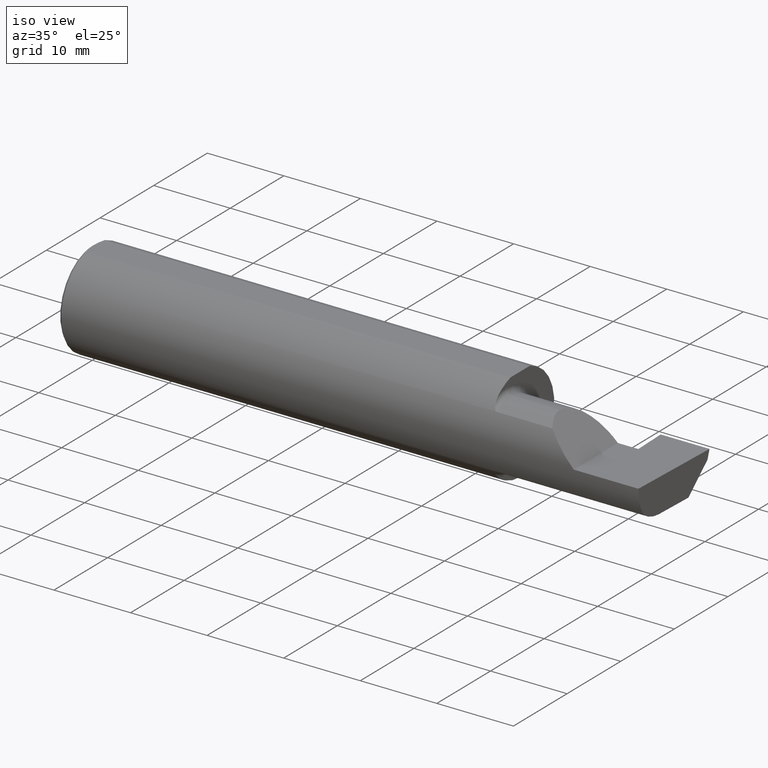
[diagram: clean part render]
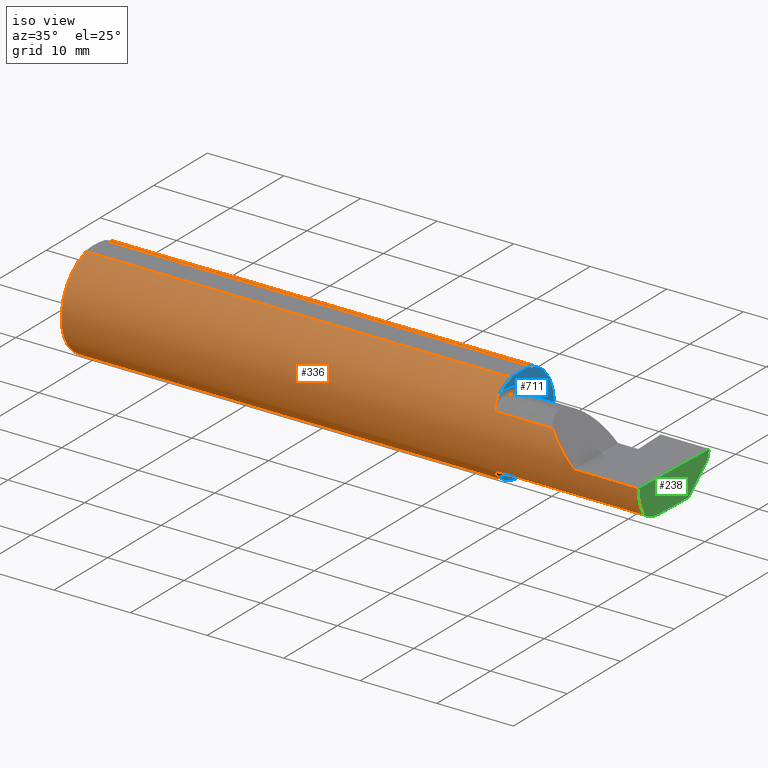
[diagram: same view with three faces highlighted in distinct colors, each labeled with its STEP entity id]
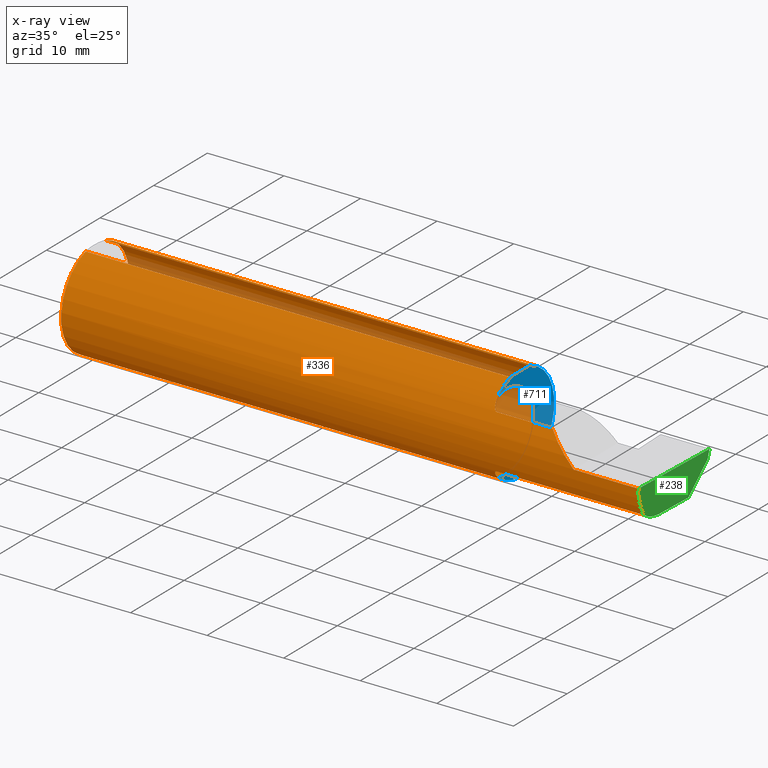
[diagram: x-ray of the same camera — body ghosted, the three highlighted faces saturated]
A machine part, iso view with three faces highlighted in distinct colors.
The next image is the same camera in x-ray (body ghosted, the three faces saturated) — at least one of them is partly hidden behind the body in this view.
Their STEP definitions:

[orange] entity #336 — the highlighted cylindrical surface (partial cylindrical patch) has radius 6.3462 mm, axis along (-1, -0, -0).
#2 = VERTEX_POINT ( 'NONE', #166 ) ;
#4 = CARTESIAN_POINT ( 'NONE',  ( 2.981341028891338230, -0.2497592792593359701, -0.04986346618388756008 ) ) ;
#6 = VECTOR ( 'NONE', #167, 39.37007874015748143 ) ;
#7 = CARTESIAN_POINT ( 'NONE',  ( 2.212616400345755796, -0.2024684335577104644, 0.1464246884265634763 ) ) ;
#17 = CIRCLE ( 'NONE', #601, 0.2498499999999999888 ) ;
#39 = CARTESIAN_POINT ( 'NONE',  ( 2.552984868485333347, -0.2355204011147992438, 0.09701513151466735485 ) ) ;
#40 = CARTESIAN_POINT ( 'NONE',  ( 0.01499999999999999944, 0.000000000000000000, 0.000000000000000000 ) ) ;
#42 = ORIENTED_EDGE ( 'NONE', *, *, #137, .T. ) ;
#54 = AXIS2_PLACEMENT_3D ( 'NONE', #151, #155, #653 ) ;
#57 = CARTESIAN_POINT ( 'NONE',  ( 2.199999999999998845, -0.1665641037263009827, 0.1863429692936361126 ) ) ;
#63 = LINE ( 'NONE', #69, #774 ) ;
#69 = CARTESIAN_POINT ( 'NONE',  ( 0.000000000000000000, 0.06997856814768359246, 0.2398500000000000076 ) ) ;
#96 = CARTESIAN_POINT ( 'NONE',  ( 2.650000000000000355, -0.2498499999999999610, 4.286263797015727350E-17 ) ) ;
#100 = VERTEX_POINT ( 'NONE', #747 ) ;
#103 = EDGE_CURVE ( 'NONE', #642, #140, #358, .T. ) ;
#104 = CARTESIAN_POINT ( 'NONE',  ( 2.221700027347579098, -0.2077785947292770941, -0.1387580622202821690 ) ) ;
#112 = ORIENTED_EDGE ( 'NONE', *, *, #453, .T. ) ;
#120 = VERTEX_POINT ( 'NONE', #260 ) ;
#122 = CIRCLE ( 'NONE', #759, 0.2498499999999999888 ) ;
#126 = ORIENTED_EDGE ( 'NONE', *, *, #595, .F. ) ;
#129 = CARTESIAN_POINT ( 'NONE',  ( 2.217647060162628136, -0.2062109266231183791, 0.1410799729252286971 ) ) ;
#133 = CARTESIAN_POINT ( 'NONE',  ( 2.199999999999999289, -0.1616050818046604332, 0.1905487340154980169 ) ) ;
#137 = EDGE_CURVE ( 'NONE', #682, #100, #235, .T. ) ;
#138 = DIRECTION ( 'NONE',  ( 0.000000000000000000, 0.000000000000000000, -1.000000000000000000 ) ) ;
#140 = VERTEX_POINT ( 'NONE', #446 ) ;
#141 = CARTESIAN_POINT ( 'NONE',  ( 4.499279347985559139E-32, -0.2498499999999999610, 3.673940397442053459E-16 ) ) ;
#149 = ORIENTED_EDGE ( 'NONE', *, *, #721, .F. ) ;
#151 = CARTESIAN_POINT ( 'NONE',  ( 0.01499999999999999944, 0.000000000000000000, 0.000000000000000000 ) ) ;
#155 = DIRECTION ( 'NONE',  ( -1.000000000000000000, -0.000000000000000000, -0.000000000000000000 ) ) ;
#160 = ORIENTED_EDGE ( 'NONE', *, *, #778, .F. ) ;
#166 = CARTESIAN_POINT ( 'NONE',  ( 2.225000000000000089, -0.2080850024789291375, -0.1382955322609665805 ) ) ;
#167 = DIRECTION ( 'NONE',  ( -1.000000000000000000, -0.000000000000000000, -0.000000000000000000 ) ) ;
#180 = VERTEX_POINT ( 'NONE', #568 ) ;
#185 = CARTESIAN_POINT ( 'NONE',  ( 2.980479240051444378, -0.2080850024789291652, -0.1382955322609665250 ) ) ;
#190 = CARTESIAN_POINT ( 'NONE',  ( 2.206159563508733434, -0.1933019864360851492, 0.1584298865564828795 ) ) ;
#196 = AXIS2_PLACEMENT_3D ( 'NONE', #197, #387, #138 ) ;
#197 = CARTESIAN_POINT ( 'NONE',  ( 2.200000000000000178, 0.000000000000000000, 0.000000000000000000 ) ) ;
#198 = VECTOR ( 'NONE', #566, 39.37007874015748143 ) ;
#205 = ORIENTED_EDGE ( 'NONE', *, *, #297, .T. ) ;
#211 = DIRECTION ( 'NONE',  ( -1.000000000000000000, -0.000000000000000000, -0.000000000000000000 ) ) ;
#219 = DIRECTION ( 'NONE',  ( 0.02616100201822768243, -0.0009135623211515307490, 0.9996573249755575929 ) ) ;
#222 = CARTESIAN_POINT ( 'NONE',  ( 0.01499999999999999944, 0.000000000000000000, -0.2498499999999999888 ) ) ;
#223 = VECTOR ( 'NONE', #219, 39.37007874015748854 ) ;
#225 = CARTESIAN_POINT ( 'NONE',  ( 2.199999999999999289, -0.1616050818046604332, 0.1905487340154980169 ) ) ;
#235 =( BOUNDED_CURVE ( )  B_SPLINE_CURVE ( 3, ( #683, #744, #4, #322 ),
 .UNSPECIFIED., .F., .F. ) 
 B_SPLINE_CURVE_WITH_KNOTS ( ( 4, 4 ),
 ( 0.05713034791898994463, 0.6418805321922593787 ),
 .UNSPECIFIED. ) 
 CURVE ( )  GEOMETRIC_REPRESENTATION_ITEM ( )  RATIONAL_B_SPLINE_CURVE ( ( 1.000000000000000000, 0.9717080070095530653, 0.9717080070095530653, 1.000000000000000000 ) ) 
 REPRESENTATION_ITEM ( '' )  );
#240 = CARTESIAN_POINT ( 'NONE',  ( 2.199999999999999289, -0.1616050818046604332, -0.1905487340154980169 ) ) ;
#241 = ORIENTED_EDGE ( 'NONE', *, *, #608, .F. ) ;
#246 = DIRECTION ( 'NONE',  ( 0.000000000000000000, 0.000000000000000000, -1.000000000000000000 ) ) ;
#259 = CARTESIAN_POINT ( 'NONE',  ( 2.225000000000000089, -0.2080850024789292485, 0.1382955322609664972 ) ) ;
#260 = CARTESIAN_POINT ( 'NONE',  ( 2.200000000000000178, -0.06997856814768374512, 0.2398500000000000076 ) ) ;
#261 = CARTESIAN_POINT ( 'NONE',  ( 2.199999999999999289, -0.1616050818046604332, -0.1905487340154980169 ) ) ;
#272 = EDGE_CURVE ( 'NONE', #416, #498, #648, .T. ) ;
#278 = AXIS2_PLACEMENT_3D ( 'NONE', #401, #211, #341 ) ;
#280 = CARTESIAN_POINT ( 'NONE',  ( 0.01499999999999998036, 0.06997856814768359246, 0.2398500000000000076 ) ) ;
#287 = CARTESIAN_POINT ( 'NONE',  ( 2.511704467739034552, -0.2080850024789292485, 0.1382955322609664139 ) ) ;
#289 = DIRECTION ( 'NONE',  ( 0.000000000000000000, 0.000000000000000000, 1.000000000000000000 ) ) ;
#297 = EDGE_CURVE ( 'NONE', #719, #416, #352, .T. ) ;
#301 = ORIENTED_EDGE ( 'NONE', *, *, #534, .F. ) ;
#310 = CARTESIAN_POINT ( 'NONE',  ( 2.487000000000000099, -0.2080850024789291652, 0.1382955322609665250 ) ) ;
#322 = CARTESIAN_POINT ( 'NONE',  ( 2.982632426700501771, -0.2498495826666993214, -0.0004566631977676544681 ) ) ;
#336 = ADVANCED_FACE ( 'NONE', ( #588 ), #389, .T. ) ;
#338 = ORIENTED_EDGE ( 'NONE', *, *, #745, .F. ) ;
#341 = DIRECTION ( 'NONE',  ( 0.000000000000000000, 0.000000000000000000, 1.000000000000000000 ) ) ;
#342 = CARTESIAN_POINT ( 'NONE',  ( 2.511704467739034552, -0.2080850024789292485, 0.1382955322609664139 ) ) ;
#350 = CARTESIAN_POINT ( 'NONE',  ( 2.223318040126429640, -0.2080850024789293318, -0.1382955322609663584 ) ) ;
#352 = LINE ( 'NONE', #141, #748 ) ;
#353 = DIRECTION ( 'NONE',  ( -1.000000000000000000, -0.000000000000000000, -0.000000000000000000 ) ) ;
#354 = CARTESIAN_POINT ( 'NONE',  ( 2.201385488563269988, -0.1808287530430326417, -0.1728790649396286516 ) ) ;
#358 = CIRCLE ( 'NONE', #196, 0.2498499999999999888 ) ;
#365 = CARTESIAN_POINT ( 'NONE',  ( 2.208176740666625726, -0.1972027065478074714, -0.1535263573771911416 ) ) ;
#371 = VERTEX_POINT ( 'NONE', #280 ) ;
#382 = CARTESIAN_POINT ( 'NONE',  ( 2.200000000000000178, 0.000000000000000000, 0.000000000000000000 ) ) ;
#384 = CARTESIAN_POINT ( 'NONE',  ( 2.202968662030528435, -0.1849684355203379260, 0.1680843977756265595 ) ) ;
#387 = DIRECTION ( 'NONE',  ( 1.000000000000000000, 0.000000000000000000, 0.000000000000000000 ) ) ;
#389 = CYLINDRICAL_SURFACE ( 'NONE', #278, 0.2498499999999999888 ) ;
#401 = CARTESIAN_POINT ( 'NONE',  ( 0.000000000000000000, 0.000000000000000000, 0.000000000000000000 ) ) ;
#411 = CARTESIAN_POINT ( 'NONE',  ( 2.218863362722769850, -0.2068301641248772027, -0.1401678546132356373 ) ) ;
#416 = VERTEX_POINT ( 'NONE', #420 ) ;
#420 = CARTESIAN_POINT ( 'NONE',  ( 2.650000000000000355, -0.2498499999999999610, 4.286263797015727350E-17 ) ) ;
#434 = CARTESIAN_POINT ( 'NONE',  ( 2.208182335268384477, -0.1972192205116133079, 0.1535061413537207042 ) ) ;
#446 = CARTESIAN_POINT ( 'NONE',  ( 2.200000000000000178, 0.06997856814768360634, 0.2398500000000000076 ) ) ;
#453 = EDGE_CURVE ( 'NONE', #100, #719, #781, .T. ) ;
#461 = CARTESIAN_POINT ( 'NONE',  ( 0.000000000000000000, -0.06997856814768359246, 0.2398500000000000076 ) ) ;
#462 = CARTESIAN_POINT ( 'NONE',  ( 2.487000000000000099, -0.2080850024789291652, -0.1382955322609665250 ) ) ;
#468 = CARTESIAN_POINT ( 'NONE',  ( 2.212579853086619419, -0.2024300470081737691, -0.1464774911482681907 ) ) ;
#469 = ORIENTED_EDGE ( 'NONE', *, *, #637, .F. ) ;
#488 = DIRECTION ( 'NONE',  ( 1.000000000000000000, 0.000000000000000000, 0.000000000000000000 ) ) ;
#493 = VERTEX_POINT ( 'NONE', #225 ) ;
#498 = VERTEX_POINT ( 'NONE', #287 ) ;
#500 = EDGE_CURVE ( 'NONE', #2, #642, #567, .T. ) ;
#513 = ORIENTED_EDGE ( 'NONE', *, *, #500, .F. ) ;
#518 = CARTESIAN_POINT ( 'NONE',  ( 2.600434159100403875, -0.2498499999999999055, 0.04956584089959691769 ) ) ;
#520 = VECTOR ( 'NONE', #636, 39.37007874015748143 ) ;
#532 = CARTESIAN_POINT ( 'NONE',  ( 2.225000000000000089, -0.2080850024789291375, -0.1382955322609665805 ) ) ;
#534 = EDGE_CURVE ( 'NONE', #682, #2, #767, .T. ) ;
#548 = LINE ( 'NONE', #310, #198 ) ;
#553 = CARTESIAN_POINT ( 'NONE',  ( 2.218876997637615034, -0.2068363917296602572, 0.1401586554522226136 ) ) ;
#562 = CARTESIAN_POINT ( 'NONE',  ( 2.221718393013768722, -0.2077830475237243957, 0.1387513848711933451 ) ) ;
#566 = DIRECTION ( 'NONE',  ( 1.000000000000000000, 0.000000000000000000, 0.000000000000000000 ) ) ;
#567 = B_SPLINE_CURVE_WITH_KNOTS ( 'NONE', 3,
 ( #532, #350, #104, #411, #726, #709, #468, #365, #654, #354, #776, #240 ),
 .UNSPECIFIED., .F., .F.,
 ( 4, 2, 2, 2, 2, 4 ),
 ( 1.964491429042083859E-07, 0.0001260981470478308324, 0.0002519998449527574851, 0.0005038032407626243971, 0.001007410032382356812, 0.002014623615621819689 ),
 .UNSPECIFIED. ) ;
#568 = CARTESIAN_POINT ( 'NONE',  ( 0.01499999999999999944, -0.06997856814768359246, 0.2398500000000000076 ) ) ;
#581 = CARTESIAN_POINT ( 'NONE',  ( 2.225000000000000089, -0.2080850024789292485, 0.1382955322609664972 ) ) ;
#587 = CARTESIAN_POINT ( 'NONE',  ( 2.982644377562602589, -0.2498499999999999610, 1.813681607540488003E-17 ) ) ;
#588 = FACE_OUTER_BOUND ( 'NONE', #773, .T. ) ;
#590 = DIRECTION ( 'NONE',  ( -1.000000000000000000, -0.000000000000000000, -0.000000000000000000 ) ) ;
#594 = LINE ( 'NONE', #461, #520 ) ;
#595 = EDGE_CURVE ( 'NONE', #725, #498, #548, .T. ) ;
#601 = AXIS2_PLACEMENT_3D ( 'NONE', #382, #488, #246 ) ;
#608 = EDGE_CURVE ( 'NONE', #120, #493, #17, .T. ) ;
#631 = ORIENTED_EDGE ( 'NONE', *, *, #272, .T. ) ;
#634 = CIRCLE ( 'NONE', #54, 0.2498499999999999888 ) ;
#636 = DIRECTION ( 'NONE',  ( 1.000000000000000000, 0.000000000000000000, 0.000000000000000000 ) ) ;
#637 = EDGE_CURVE ( 'NONE', #140, #371, #63, .T. ) ;
#642 = VERTEX_POINT ( 'NONE', #261 ) ;
#648 =( BOUNDED_CURVE ( )  B_SPLINE_CURVE ( 3, ( #96, #518, #39, #342 ),
 .UNSPECIFIED., .F., .F. ) 
 B_SPLINE_CURVE_WITH_KNOTS ( ( 4, 4 ),
 ( 4.712388980384689674, 5.298966915116346321 ),
 .UNSPECIFIED. ) 
 CURVE ( )  GEOMETRIC_REPRESENTATION_ITEM ( )  RATIONAL_B_SPLINE_CURVE ( ( 1.000000000000000000, 0.9715321379117538569, 0.9715321379117538569, 1.000000000000000000 ) ) 
 REPRESENTATION_ITEM ( '' )  );
#653 = DIRECTION ( 'NONE',  ( 0.000000000000000000, 0.000000000000000000, 1.000000000000000000 ) ) ;
#654 = CARTESIAN_POINT ( 'NONE',  ( 2.206147634408387681, -0.1932733126899462417, -0.1584637047788194641 ) ) ;
#658 = CARTESIAN_POINT ( 'NONE',  ( 2.977412177158956563, -0.2496672875357696664, -0.1999314649951114686 ) ) ;
#664 = EDGE_CURVE ( 'NONE', #493, #725, #791, .T. ) ;
#677 = CARTESIAN_POINT ( 'NONE',  ( 2.200367168219773628, -0.1713400252854603290, 0.1819601557798503910 ) ) ;
#682 = VERTEX_POINT ( 'NONE', #185 ) ;
#683 = CARTESIAN_POINT ( 'NONE',  ( 2.980479240051444378, -0.2080850024789291652, -0.1382955322609665250 ) ) ;
#709 = CARTESIAN_POINT ( 'NONE',  ( 2.214302603425052585, -0.2041009206016215494, -0.1441313430770036486 ) ) ;
#719 = VERTEX_POINT ( 'NONE', #587 ) ;
#721 = EDGE_CURVE ( 'NONE', #371, #727, #122, .T. ) ;
#725 = VERTEX_POINT ( 'NONE', #581 ) ;
#726 = CARTESIAN_POINT ( 'NONE',  ( 2.217611663768900065, -0.2061921161193832897, -0.1411075319999373079 ) ) ;
#727 = VERTEX_POINT ( 'NONE', #222 ) ;
#729 = DIRECTION ( 'NONE',  ( -1.000000000000000000, -0.000000000000000000, -0.000000000000000000 ) ) ;
#740 = CARTESIAN_POINT ( 'NONE',  ( 2.201849548162864156, -0.1805300287242674884, 0.1728462070311779231 ) ) ;
#743 = CARTESIAN_POINT ( 'NONE',  ( 2.214343523383978773, -0.2041337200786085826, 0.1440846171672508502 ) ) ;
#744 = CARTESIAN_POINT ( 'NONE',  ( 2.980602402804240381, -0.2354324170447285036, -0.09714751587401351807 ) ) ;
#745 = EDGE_CURVE ( 'NONE', #180, #120, #594, .T. ) ;
#747 = CARTESIAN_POINT ( 'NONE',  ( 2.982632426700501771, -0.2498495826666993214, -0.0004566631977676544681 ) ) ;
#748 = VECTOR ( 'NONE', #590, 39.37007874015748143 ) ;
#759 = AXIS2_PLACEMENT_3D ( 'NONE', #40, #353, #289 ) ;
#767 = LINE ( 'NONE', #462, #6 ) ;
#773 = EDGE_LOOP ( 'NONE', ( #112, #205, #631, #126, #780, #241, #338, #160, #149, #469, #789, #513, #301, #42 ) ) ;
#774 = VECTOR ( 'NONE', #729, 39.37007874015748143 ) ;
#776 = CARTESIAN_POINT ( 'NONE',  ( 2.199999999999998845, -0.1716188362992554783, -0.1820560320165478807 ) ) ;
#778 = EDGE_CURVE ( 'NONE', #727, #180, #634, .T. ) ;
#780 = ORIENTED_EDGE ( 'NONE', *, *, #664, .F. ) ;
#781 = LINE ( 'NONE', #658, #223 ) ;
#789 = ORIENTED_EDGE ( 'NONE', *, *, #103, .F. ) ;
#791 = B_SPLINE_CURVE_WITH_KNOTS ( 'NONE', 3,
 ( #133, #57, #677, #740, #384, #190, #434, #7, #743, #129, #553, #562, #796, #259 ),
 .UNSPECIFIED., .F., .F.,
 ( 4, 2, 2, 2, 2, 2, 4 ),
 ( 0.0003834465838148173595, 0.0008781406165086658600, 0.001372834649202514306, 0.001867528681896362969, 0.002114875698243291746, 0.002238549206416762857, 0.002362222714590233533 ),
 .UNSPECIFIED. ) ;
#796 = CARTESIAN_POINT ( 'NONE',  ( 2.223329956043142985, -0.2080850024798593378, 0.1382955322595671444 ) ) ;

[blue] entity #711 — the highlighted planar face has unit normal (1, 0, 0).
#16 = CIRCLE ( 'NONE', #598, 0.1999999999999999833 ) ;
#17 = CIRCLE ( 'NONE', #601, 0.2498499999999999888 ) ;
#76 = AXIS2_PLACEMENT_3D ( 'NONE', #344, #765, #647 ) ;
#99 = CARTESIAN_POINT ( 'NONE',  ( 2.200000000000000178, -0.2498499999999999888, 0.2398500000000000076 ) ) ;
#103 = EDGE_CURVE ( 'NONE', #642, #140, #358, .T. ) ;
#119 = DIRECTION ( 'NONE',  ( 0.000000000000000000, 0.000000000000000000, 1.000000000000000000 ) ) ;
#120 = VERTEX_POINT ( 'NONE', #260 ) ;
#138 = DIRECTION ( 'NONE',  ( 0.000000000000000000, 0.000000000000000000, -1.000000000000000000 ) ) ;
#140 = VERTEX_POINT ( 'NONE', #446 ) ;
#177 = CARTESIAN_POINT ( 'NONE',  ( 2.199999999999999734, -0.1008499999999999536, -0.1999999999999999833 ) ) ;
#196 = AXIS2_PLACEMENT_3D ( 'NONE', #197, #387, #138 ) ;
#197 = CARTESIAN_POINT ( 'NONE',  ( 2.200000000000000178, 0.000000000000000000, 0.000000000000000000 ) ) ;
#204 = DIRECTION ( 'NONE',  ( 0.000000000000000000, 0.000000000000000000, 1.000000000000000000 ) ) ;
#210 = AXIS2_PLACEMENT_3D ( 'NONE', #306, #314, #119 ) ;
#215 = DIRECTION ( 'NONE',  ( -1.000000000000000000, -0.000000000000000000, -0.000000000000000000 ) ) ;
#225 = CARTESIAN_POINT ( 'NONE',  ( 2.199999999999999289, -0.1616050818046604332, 0.1905487340154980169 ) ) ;
#246 = DIRECTION ( 'NONE',  ( 0.000000000000000000, 0.000000000000000000, -1.000000000000000000 ) ) ;
#260 = CARTESIAN_POINT ( 'NONE',  ( 2.200000000000000178, -0.06997856814768374512, 0.2398500000000000076 ) ) ;
#261 = CARTESIAN_POINT ( 'NONE',  ( 2.199999999999999289, -0.1616050818046604332, -0.1905487340154980169 ) ) ;
#306 = CARTESIAN_POINT ( 'NONE',  ( 2.199999999999999734, -0.1008499999999999674, 0.000000000000000000 ) ) ;
#314 = DIRECTION ( 'NONE',  ( -1.000000000000000000, -0.000000000000000000, -0.000000000000000000 ) ) ;
#320 = CIRCLE ( 'NONE', #739, 0.1999999999999999833 ) ;
#344 = CARTESIAN_POINT ( 'NONE',  ( 2.200000000000000178, 0.2741500000000000048, 0.000000000000000000 ) ) ;
#358 = CIRCLE ( 'NONE', #196, 0.2498499999999999888 ) ;
#378 = EDGE_CURVE ( 'NONE', #493, #542, #16, .T. ) ;
#382 = CARTESIAN_POINT ( 'NONE',  ( 2.200000000000000178, 0.000000000000000000, 0.000000000000000000 ) ) ;
#387 = DIRECTION ( 'NONE',  ( 1.000000000000000000, 0.000000000000000000, 0.000000000000000000 ) ) ;
#388 = PLANE ( 'NONE',  #76 ) ;
#423 = DIRECTION ( 'NONE',  ( 0.000000000000000000, 0.000000000000000000, 1.000000000000000000 ) ) ;
#446 = CARTESIAN_POINT ( 'NONE',  ( 2.200000000000000178, 0.06997856814768360634, 0.2398500000000000076 ) ) ;
#457 = EDGE_CURVE ( 'NONE', #120, #140, #591, .T. ) ;
#478 = VERTEX_POINT ( 'NONE', #177 ) ;
#487 = EDGE_CURVE ( 'NONE', #542, #478, #320, .T. ) ;
#488 = DIRECTION ( 'NONE',  ( 1.000000000000000000, 0.000000000000000000, 0.000000000000000000 ) ) ;
#493 = VERTEX_POINT ( 'NONE', #225 ) ;
#507 = CARTESIAN_POINT ( 'NONE',  ( 2.199999999999999734, -0.1008499999999999674, 0.000000000000000000 ) ) ;
#533 = ORIENTED_EDGE ( 'NONE', *, *, #622, .T. ) ;
#537 = CARTESIAN_POINT ( 'NONE',  ( 2.199999999999999734, -0.1008499999999999674, 0.1999999999999999833 ) ) ;
#542 = VERTEX_POINT ( 'NONE', #537 ) ;
#561 = VECTOR ( 'NONE', #718, 39.37007874015748143 ) ;
#591 = LINE ( 'NONE', #99, #561 ) ;
#596 = CARTESIAN_POINT ( 'NONE',  ( 2.199999999999999734, -0.1008499999999999674, 0.000000000000000000 ) ) ;
#598 = AXIS2_PLACEMENT_3D ( 'NONE', #507, #215, #204 ) ;
#601 = AXIS2_PLACEMENT_3D ( 'NONE', #382, #488, #246 ) ;
#602 = DIRECTION ( 'NONE',  ( -1.000000000000000000, -0.000000000000000000, -0.000000000000000000 ) ) ;
#607 = ORIENTED_EDGE ( 'NONE', *, *, #457, .F. ) ;
#608 = EDGE_CURVE ( 'NONE', #120, #493, #17, .T. ) ;
#616 = EDGE_LOOP ( 'NONE', ( #639, #607, #710, #797, #659, #533 ) ) ;
#622 = EDGE_CURVE ( 'NONE', #478, #642, #688, .T. ) ;
#639 = ORIENTED_EDGE ( 'NONE', *, *, #103, .T. ) ;
#642 = VERTEX_POINT ( 'NONE', #261 ) ;
#647 = DIRECTION ( 'NONE',  ( 0.000000000000000000, 0.000000000000000000, -1.000000000000000000 ) ) ;
#659 = ORIENTED_EDGE ( 'NONE', *, *, #487, .T. ) ;
#688 = CIRCLE ( 'NONE', #210, 0.1999999999999999833 ) ;
#689 = FACE_OUTER_BOUND ( 'NONE', #616, .T. ) ;
#710 = ORIENTED_EDGE ( 'NONE', *, *, #608, .T. ) ;
#711 = ADVANCED_FACE ( 'NONE', ( #689 ), #388, .T. ) ;
#718 = DIRECTION ( 'NONE',  ( -0.000000000000000000, 1.000000000000000000, 0.000000000000000000 ) ) ;
#739 = AXIS2_PLACEMENT_3D ( 'NONE', #596, #602, #423 ) ;
#765 = DIRECTION ( 'NONE',  ( 1.000000000000000000, 0.000000000000000000, 0.000000000000000000 ) ) ;
#797 = ORIENTED_EDGE ( 'NONE', *, *, #378, .T. ) ;

[green] entity #238 — the highlighted planar face has unit normal (-0.999, 0.0349, 0.0262).
#4 = CARTESIAN_POINT ( 'NONE',  ( 2.981341028891338230, -0.2497592792593359701, -0.04986346618388756008 ) ) ;
#21 = EDGE_CURVE ( 'NONE', #184, #516, #609, .T. ) ;
#35 = CARTESIAN_POINT ( 'NONE',  ( 2.990479469570817894, 0.1058243371481679268, -0.1749999999999999889 ) ) ;
#48 = CARTESIAN_POINT ( 'NONE',  ( 2.999675955819515405, 0.2447082080031273699, -0.009112891793843752586 ) ) ;
#58 = ORIENTED_EDGE ( 'NONE', *, *, #164, .F. ) ;
#70 = DIRECTION ( 'NONE',  ( 0.03489949670249940794, 0.9993908270190957621, -4.452728370532699971E-18 ) ) ;
#73 = CARTESIAN_POINT ( 'NONE',  ( 2.983262242683407006, -0.1008499999999999674, -0.1749999999999999889 ) ) ;
#83 = DIRECTION ( 'NONE',  ( -0.03489949670249940100, -0.9993908270190957621, 0.000000000000000000 ) ) ;
#100 = VERTEX_POINT ( 'NONE', #747 ) ;
#110 = EDGE_CURVE ( 'NONE', #682, #355, #399, .T. ) ;
#137 = EDGE_CURVE ( 'NONE', #682, #100, #235, .T. ) ;
#150 = DIRECTION ( 'NONE',  ( -0.03489949670249939406, -0.9993908270190957621, 2.445004146800611436E-16 ) ) ;
#152 = DIRECTION ( 'NONE',  ( -0.04317993108637931121, -0.7064472710512011977, -0.7064472710511988662 ) ) ;
#164 = EDGE_CURVE ( 'NONE', #719, #184, #625, .T. ) ;
#184 = VERTEX_POINT ( 'NONE', #505 ) ;
#185 = CARTESIAN_POINT ( 'NONE',  ( 2.980479240051444378, -0.2080850024789291652, -0.1382955322609665250 ) ) ;
#192 = CARTESIAN_POINT ( 'NONE',  ( 2.982660284539054629, -0.2493944837933358694, 2.123502703737254632E-18 ) ) ;
#203 = FACE_OUTER_BOUND ( 'NONE', #589, .T. ) ;
#206 = PLANE ( 'NONE',  #644 ) ;
#219 = DIRECTION ( 'NONE',  ( 0.02616100201822768243, -0.0009135623211515307490, 0.9996573249755575929 ) ) ;
#223 = VECTOR ( 'NONE', #219, 39.37007874015748854 ) ;
#235 =( BOUNDED_CURVE ( )  B_SPLINE_CURVE ( 3, ( #683, #744, #4, #322 ),
 .UNSPECIFIED., .F., .F. ) 
 B_SPLINE_CURVE_WITH_KNOTS ( ( 4, 4 ),
 ( 0.05713034791898994463, 0.6418805321922593787 ),
 .UNSPECIFIED. ) 
 CURVE ( )  GEOMETRIC_REPRESENTATION_ITEM ( )  RATIONAL_B_SPLINE_CURVE ( ( 1.000000000000000000, 0.9717080070095530653, 0.9717080070095530653, 1.000000000000000000 ) ) 
 REPRESENTATION_ITEM ( '' )  );
#238 = ADVANCED_FACE ( 'NONE', ( #203 ), #206, .F. ) ;
#273 = CARTESIAN_POINT ( 'NONE',  ( 2.994767799596354418, 0.2473327124642303587, -0.1999314649951115241 ) ) ;
#277 = LINE ( 'NONE', #456, #393 ) ;
#286 = EDGE_CURVE ( 'NONE', #311, #355, #277, .T. ) ;
#311 = VERTEX_POINT ( 'NONE', #35 ) ;
#322 = CARTESIAN_POINT ( 'NONE',  ( 2.982632426700501771, -0.2498495826666993214, -0.0004566631977676544681 ) ) ;
#333 = CARTESIAN_POINT ( 'NONE',  ( 2.997854602263704482, 0.2264855386240996193, -0.05433879852406866412 ) ) ;
#348 = EDGE_CURVE ( 'NONE', #516, #311, #582, .T. ) ;
#355 = VERTEX_POINT ( 'NONE', #447 ) ;
#370 = CARTESIAN_POINT ( 'NONE',  ( 2.998364291748492949, 0.2348243371481683328, -0.04600000000000000616 ) ) ;
#373 = VECTOR ( 'NONE', #152, 39.37007874015748854 ) ;
#380 = ORIENTED_EDGE ( 'NONE', *, *, #21, .F. ) ;
#393 = VECTOR ( 'NONE', #150, 39.37007874015748854 ) ;
#399 =( BOUNDED_CURVE ( )  B_SPLINE_CURVE ( 3, ( #737, #621, #679, #73 ),
 .UNSPECIFIED., .F., .F. ) 
 B_SPLINE_CURVE_WITH_KNOTS ( ( 4, 4 ),
 ( 0.2675252011803429530, 0.9270880441442505004 ),
 .UNSPECIFIED. ) 
 CURVE ( )  GEOMETRIC_REPRESENTATION_ITEM ( )  RATIONAL_B_SPLINE_CURVE ( ( 1.000000000000000000, 0.9640754331822828371, 0.9640754331822828371, 1.000000000000000000 ) ) 
 REPRESENTATION_ITEM ( '' )  );
#447 = CARTESIAN_POINT ( 'NONE',  ( 2.983262242683407006, -0.1008499999999999674, -0.1749999999999999889 ) ) ;
#453 = EDGE_CURVE ( 'NONE', #100, #719, #781, .T. ) ;
#455 = ORIENTED_EDGE ( 'NONE', *, *, #110, .T. ) ;
#456 = CARTESIAN_POINT ( 'NONE',  ( 2.993019781838999194, 0.1785693626775286258, -0.1750000000000000444 ) ) ;
#481 = VECTOR ( 'NONE', #556, 39.37007874015748854 ) ;
#505 = CARTESIAN_POINT ( 'NONE',  ( 2.999999999999999556, 0.2471499999999999531, -6.157329266969842815E-16 ) ) ;
#516 = VERTEX_POINT ( 'NONE', #370 ) ;
#556 = DIRECTION ( 'NONE',  ( -0.03432699337968036363, -0.2586665114180215497, -0.9653565628286482347 ) ) ;
#582 = LINE ( 'NONE', #333, #373 ) ;
#587 = CARTESIAN_POINT ( 'NONE',  ( 2.982644377562602589, -0.2498499999999999610, 1.813681607540488003E-17 ) ) ;
#589 = EDGE_LOOP ( 'NONE', ( #455, #782, #723, #380, #58, #624, #674 ) ) ;
#609 = LINE ( 'NONE', #48, #481 ) ;
#621 = CARTESIAN_POINT ( 'NONE',  ( 2.980931506555613453, -0.1771157075472509779, -0.1623092683844330475 ) ) ;
#624 = ORIENTED_EDGE ( 'NONE', *, *, #453, .F. ) ;
#625 = LINE ( 'NONE', #192, #632 ) ;
#632 = VECTOR ( 'NONE', #70, 39.37007874015748143 ) ;
#640 = DIRECTION ( 'NONE',  ( -0.9990483607430196145, 0.03488753751661385211, 0.02617694830785935456 ) ) ;
#644 = AXIS2_PLACEMENT_3D ( 'NONE', #273, #640, #83 ) ;
#658 = CARTESIAN_POINT ( 'NONE',  ( 2.977412177158956563, -0.2496672875357696664, -0.1999314649951114686 ) ) ;
#674 = ORIENTED_EDGE ( 'NONE', *, *, #137, .F. ) ;
#679 = CARTESIAN_POINT ( 'NONE',  ( 2.981893741990786495, -0.1400387324517231025, -0.1750000000000000167 ) ) ;
#682 = VERTEX_POINT ( 'NONE', #185 ) ;
#683 = CARTESIAN_POINT ( 'NONE',  ( 2.980479240051444378, -0.2080850024789291652, -0.1382955322609665250 ) ) ;
#719 = VERTEX_POINT ( 'NONE', #587 ) ;
#723 = ORIENTED_EDGE ( 'NONE', *, *, #348, .F. ) ;
#737 = CARTESIAN_POINT ( 'NONE',  ( 2.980479240051444378, -0.2080850024789291652, -0.1382955322609665250 ) ) ;
#744 = CARTESIAN_POINT ( 'NONE',  ( 2.980602402804240381, -0.2354324170447285036, -0.09714751587401351807 ) ) ;
#747 = CARTESIAN_POINT ( 'NONE',  ( 2.982632426700501771, -0.2498495826666993214, -0.0004566631977676544681 ) ) ;
#781 = LINE ( 'NONE', #658, #223 ) ;
#782 = ORIENTED_EDGE ( 'NONE', *, *, #286, .F. ) ;